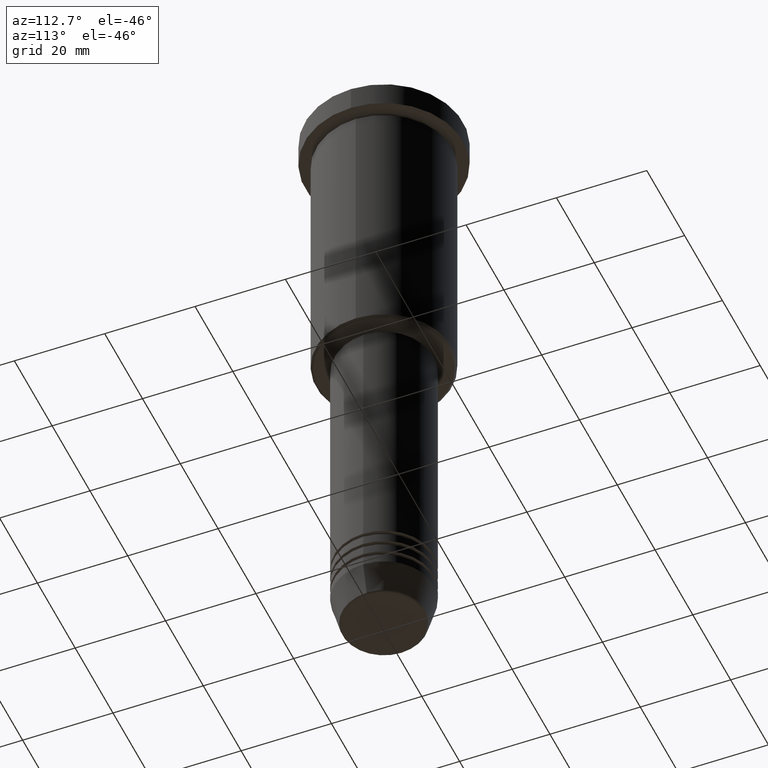
[diagram: clean part render]
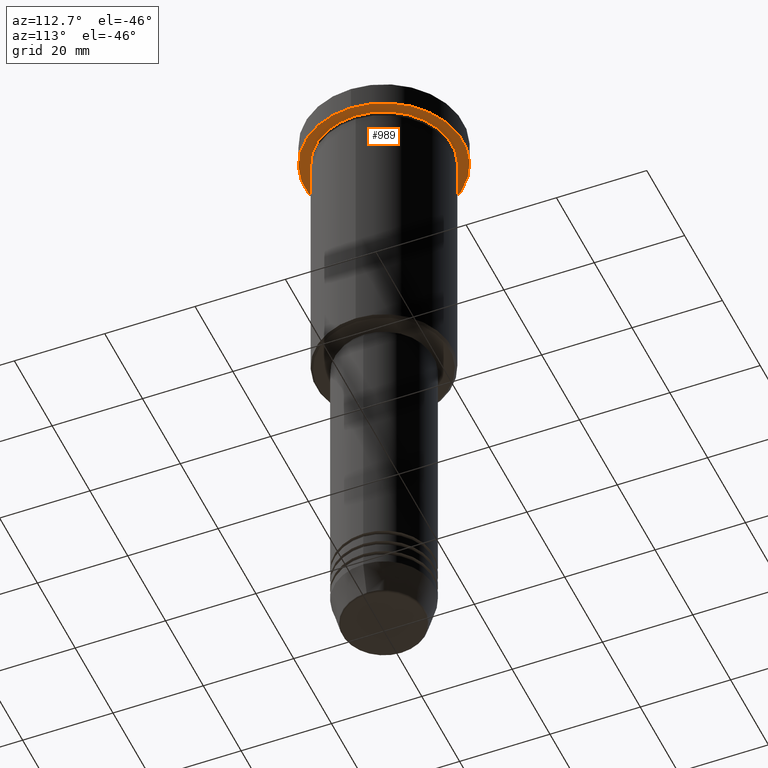
[diagram: same view with one face highlighted and labeled with its STEP entity id]
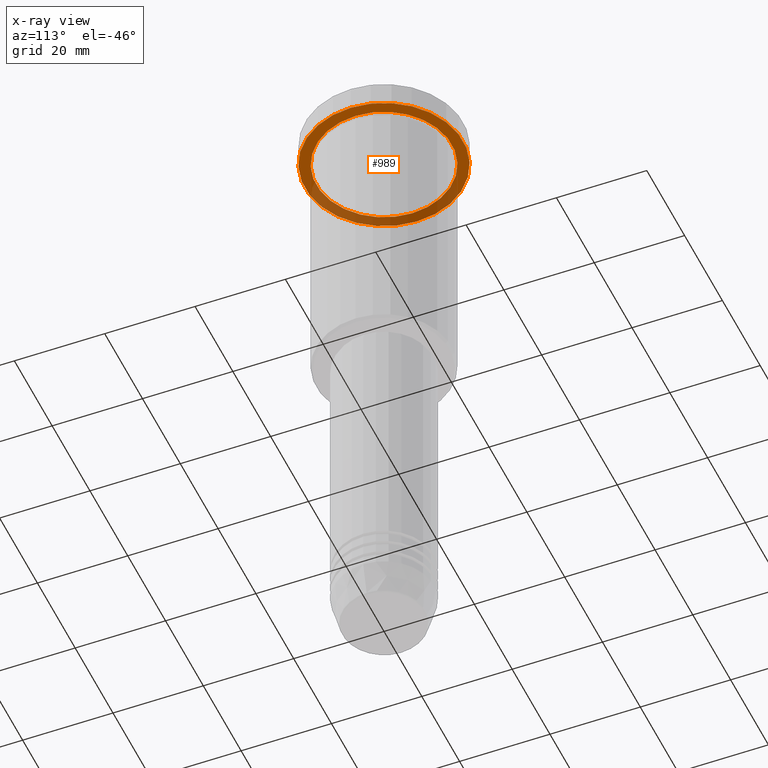
[diagram: x-ray of the same camera — body ghosted, the highlighted face saturated]
A machine part, auxiliary view. The second image highlights one B-rep face of the part: STEP entity #989.
The next image is the same camera in x-ray: the body ghosted, the highlighted face saturated — about 36% of this face is hidden behind the body in this view.
In plain terms, the highlighted planar face has unit normal (0, 0, -1).
Its self-contained STEP definition (entity closure, byte-faithful):
#2 = DIRECTION ( 'NONE',  ( -0.000000000000000000, -0.000000000000000000, 1.000000000000000000 ) ) ;
#8 = DIRECTION ( 'NONE',  ( -0.000000000000000000, -0.000000000000000000, 1.000000000000000000 ) ) ;
#22 = EDGE_CURVE ( 'NONE', #439, #715, #828, .T. ) ;
#35 = FACE_BOUND ( 'NONE', #57, .T. ) ;
#39 = EDGE_CURVE ( 'NONE', #617, #702, #848, .T. ) ;
#57 = EDGE_LOOP ( 'NONE', ( #236, #1149 ) ) ;
#122 = AXIS2_PLACEMENT_3D ( 'NONE', #660, #2, #367 ) ;
#129 = EDGE_LOOP ( 'NONE', ( #801, #843 ) ) ;
#130 = CARTESIAN_POINT ( 'NONE',  ( 17.50000000000000000, 0.000000000000000000, -5.999999999999995559 ) ) ;
#136 = DIRECTION ( 'NONE',  ( 0.000000000000000000, 0.000000000000000000, -1.000000000000000000 ) ) ;
#148 = CIRCLE ( 'NONE', #810, 15.00000000000000000 ) ;
#236 = ORIENTED_EDGE ( 'NONE', *, *, #39, .T. ) ;
#273 = EDGE_CURVE ( 'NONE', #702, #617, #148, .T. ) ;
#367 = DIRECTION ( 'NONE',  ( 1.000000000000000000, 0.000000000000000000, 0.000000000000000000 ) ) ;
#389 = AXIS2_PLACEMENT_3D ( 'NONE', #461, #824, #731 ) ;
#439 = VERTEX_POINT ( 'NONE', #130 ) ;
#457 = DIRECTION ( 'NONE',  ( 1.000000000000000000, 0.000000000000000000, 0.000000000000000000 ) ) ;
#461 = CARTESIAN_POINT ( 'NONE',  ( 0.000000000000000000, 0.000000000000000000, -5.999999999999995559 ) ) ;
#481 = AXIS2_PLACEMENT_3D ( 'NONE', #638, #8, #457 ) ;
#537 = CARTESIAN_POINT ( 'NONE',  ( 15.00000000000000000, 1.836970198721029589E-15, -5.999999999999994671 ) ) ;
#590 = DIRECTION ( 'NONE',  ( -1.000000000000000000, 0.000000000000000000, -0.000000000000000000 ) ) ;
#617 = VERTEX_POINT ( 'NONE', #1107 ) ;
#638 = CARTESIAN_POINT ( 'NONE',  ( 0.000000000000000000, 0.000000000000000000, -5.999999999999995559 ) ) ;
#641 = DIRECTION ( 'NONE',  ( -1.000000000000000000, 0.000000000000000000, 0.000000000000000000 ) ) ;
#660 = CARTESIAN_POINT ( 'NONE',  ( 0.000000000000000000, 0.000000000000000000, -5.999999999999995559 ) ) ;
#702 = VERTEX_POINT ( 'NONE', #537 ) ;
#715 = VERTEX_POINT ( 'NONE', #1180 ) ;
#731 = DIRECTION ( 'NONE',  ( -1.000000000000000000, 0.000000000000000000, 0.000000000000000000 ) ) ;
#751 = CARTESIAN_POINT ( 'NONE',  ( 0.000000000000000000, 0.000000000000000000, -5.999999999999995559 ) ) ;
#761 = FACE_OUTER_BOUND ( 'NONE', #129, .T. ) ;
#801 = ORIENTED_EDGE ( 'NONE', *, *, #22, .F. ) ;
#810 = AXIS2_PLACEMENT_3D ( 'NONE', #751, #1096, #641 ) ;
#824 = DIRECTION ( 'NONE',  ( -0.000000000000000000, -0.000000000000000000, 1.000000000000000000 ) ) ;
#828 = CIRCLE ( 'NONE', #122, 17.50000000000000000 ) ;
#843 = ORIENTED_EDGE ( 'NONE', *, *, #870, .F. ) ;
#845 = CIRCLE ( 'NONE', #481, 17.50000000000000000 ) ;
#848 = CIRCLE ( 'NONE', #389, 15.00000000000000000 ) ;
#870 = EDGE_CURVE ( 'NONE', #715, #439, #845, .T. ) ;
#907 = AXIS2_PLACEMENT_3D ( 'NONE', #1147, #136, #590 ) ;
#955 = PLANE ( 'NONE',  #907 ) ;
#989 = ADVANCED_FACE ( 'NONE', ( #35, #761 ), #955, .T. ) ;
#1096 = DIRECTION ( 'NONE',  ( -0.000000000000000000, -0.000000000000000000, 1.000000000000000000 ) ) ;
#1107 = CARTESIAN_POINT ( 'NONE',  ( -15.00000000000000000, 0.000000000000000000, -5.999999999999994671 ) ) ;
#1147 = CARTESIAN_POINT ( 'NONE',  ( 0.000000000000000000, 17.50000000000000000, -5.999999999999995559 ) ) ;
#1149 = ORIENTED_EDGE ( 'NONE', *, *, #273, .T. ) ;
#1180 = CARTESIAN_POINT ( 'NONE',  ( -17.50000000000000000, 2.143131898507868248E-15, -5.999999999999995559 ) ) ;